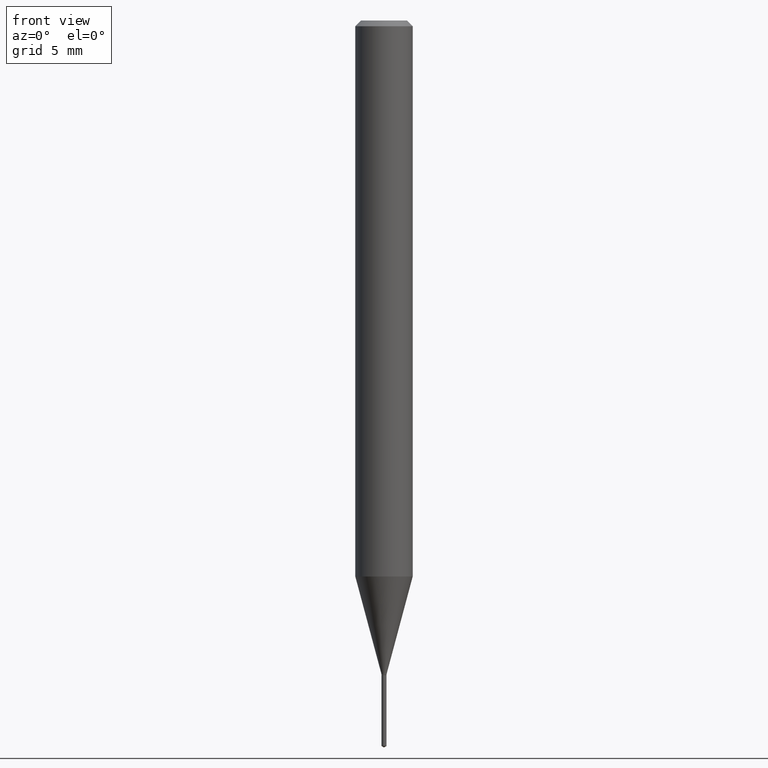
[diagram: clean part render]
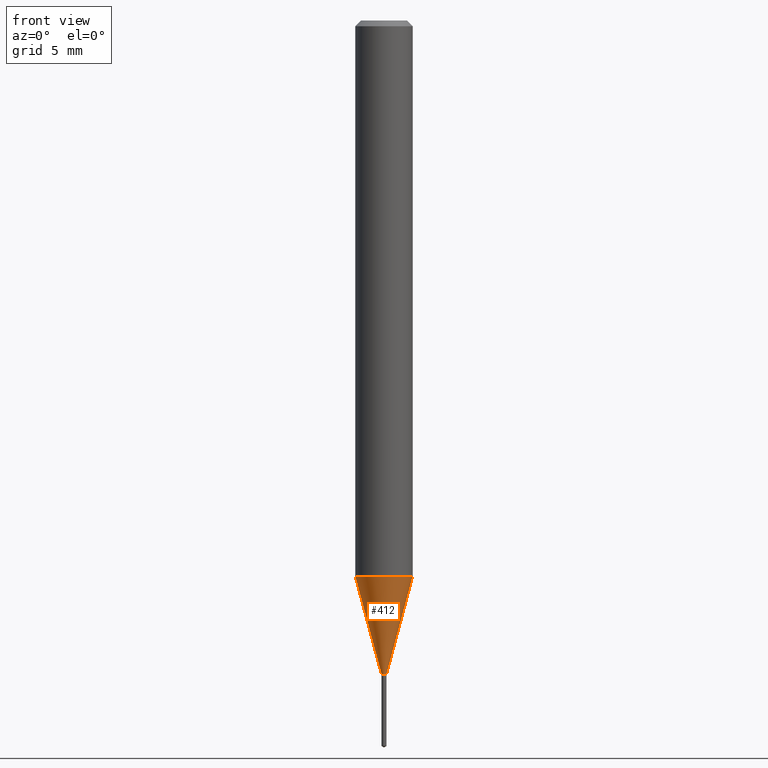
[diagram: same view with one face highlighted and labeled with its STEP entity id]
A machine part, front view. The second image highlights one B-rep face of the part: STEP entity #412.
In plain terms, the highlighted conical surface has half-angle 15 deg.
Its self-contained STEP definition (entity closure, byte-faithful):
#4 = CONICAL_SURFACE ( 'NONE', #290, 0.005300000000000000891, 0.2617993877991500740 ) ;
#20 = CARTESIAN_POINT ( 'NONE',  ( 2.798355503914224078E-29, -3.995310018534680444E-15, -1.144302269093172786 ) ) ;
#24 = DIRECTION ( 'NONE',  ( -0.2588190451025213501, 5.211531920934551042E-15, 0.9659258262890682012 ) ) ;
#50 = FACE_OUTER_BOUND ( 'NONE', #240, .T. ) ;
#57 = ORIENTED_EDGE ( 'NONE', *, *, #356, .T. ) ;
#59 = CARTESIAN_POINT ( 'NONE',  ( 0.005300000000000000891, -4.732702954801883924E-15, -1.344899999999999984 ) ) ;
#62 = DIRECTION ( 'NONE',  ( 0.2588190451025213501, 1.565188264969621968E-15, 0.9659258262890682012 ) ) ;
#81 = VERTEX_POINT ( 'NONE', #261 ) ;
#94 = CARTESIAN_POINT ( 'NONE',  ( -0.05905000000000013710, -3.575734533068340951E-15, -1.144302269093172786 ) ) ;
#98 = LINE ( 'NONE', #429, #288 ) ;
#100 = DIRECTION ( 'NONE',  ( -2.445468806185136597E-29, 3.491481338843145583E-15, 1.000000000000000000 ) ) ;
#115 = VECTOR ( 'NONE', #24, 39.37007874015747433 ) ;
#131 = AXIS2_PLACEMENT_3D ( 'NONE', #20, #247, #385 ) ;
#176 = LINE ( 'NONE', #360, #115 ) ;
#189 = AXIS2_PLACEMENT_3D ( 'NONE', #390, #211, #355 ) ;
#191 = VERTEX_POINT ( 'NONE', #59 ) ;
#211 = DIRECTION ( 'NONE',  ( -2.445468806185136597E-29, 3.491481338843145583E-15, 1.000000000000000000 ) ) ;
#224 = CIRCLE ( 'NONE', #131, 0.05905000000000013710 ) ;
#240 = EDGE_LOOP ( 'NONE', ( #442, #57, #470, #292 ) ) ;
#247 = DIRECTION ( 'NONE',  ( -2.445468806185136597E-29, 3.491481338843145583E-15, 1.000000000000000000 ) ) ;
#261 = CARTESIAN_POINT ( 'NONE',  ( 0.05905000000000013710, -4.407653964652056153E-15, -1.144302269093172786 ) ) ;
#280 = CARTESIAN_POINT ( 'NONE',  ( 3.288910997438389961E-29, -4.695693252610146470E-15, -1.344899999999999984 ) ) ;
#288 = VECTOR ( 'NONE', #62, 39.37007874015747433 ) ;
#290 = AXIS2_PLACEMENT_3D ( 'NONE', #280, #100, #305 ) ;
#292 = ORIENTED_EDGE ( 'NONE', *, *, #341, .F. ) ;
#300 = EDGE_CURVE ( 'NONE', #384, #413, #176, .T. ) ;
#305 = DIRECTION ( 'NONE',  ( 1.000000000000000000, -6.982962677686350330E-15, 0.000000000000000000 ) ) ;
#317 = CARTESIAN_POINT ( 'NONE',  ( -0.005300000000000000891, -4.659954802351225412E-15, -1.344899999999999984 ) ) ;
#341 = EDGE_CURVE ( 'NONE', #413, #81, #224, .T. ) ;
#351 = EDGE_CURVE ( 'NONE', #191, #81, #98, .T. ) ;
#355 = DIRECTION ( 'NONE',  ( 1.000000000000000000, -6.982962677686350330E-15, 0.000000000000000000 ) ) ;
#356 = EDGE_CURVE ( 'NONE', #384, #191, #399, .T. ) ;
#360 = CARTESIAN_POINT ( 'NONE',  ( -0.005300000000000000891, -4.658034487614861364E-15, -1.344899999999999984 ) ) ;
#384 = VERTEX_POINT ( 'NONE', #317 ) ;
#385 = DIRECTION ( 'NONE',  ( 1.000000000000000000, -6.982962677686264344E-15, 0.000000000000000000 ) ) ;
#390 = CARTESIAN_POINT ( 'NONE',  ( 3.288910997438389961E-29, -4.695693252610146470E-15, -1.344899999999999984 ) ) ;
#399 = CIRCLE ( 'NONE', #189, 0.005300000000000000891 ) ;
#412 = ADVANCED_FACE ( 'NONE', ( #50 ), #4, .T. ) ;
#413 = VERTEX_POINT ( 'NONE', #94 ) ;
#429 = CARTESIAN_POINT ( 'NONE',  ( 0.005300000000000000891, -4.732702954801883924E-15, -1.344899999999999984 ) ) ;
#442 = ORIENTED_EDGE ( 'NONE', *, *, #300, .F. ) ;
#470 = ORIENTED_EDGE ( 'NONE', *, *, #351, .T. ) ;